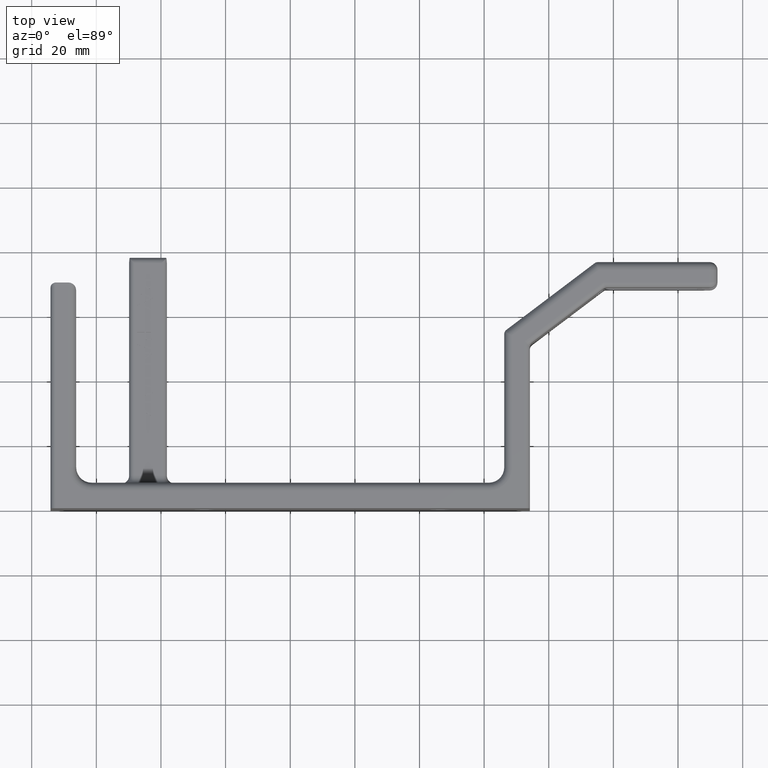
[diagram: clean part render]
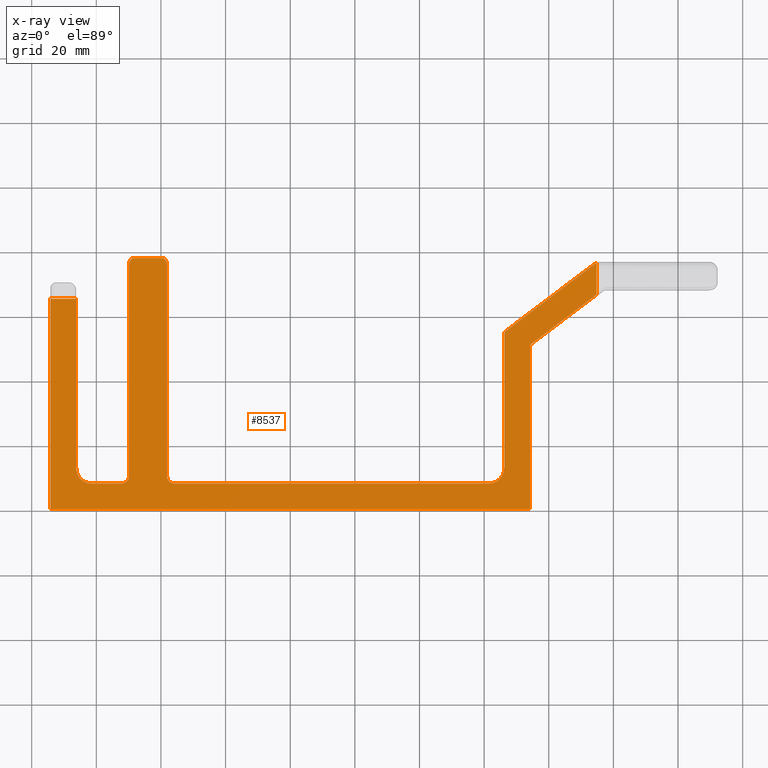
[diagram: x-ray — body ghosted, one internal face saturated and labeled with its STEP entity id]
A machine part, top view, then the same camera in x-ray: the body is ghosted and one INTERNAL B-rep face — a face not visible from any outside direction — is saturated and labeled: STEP entity #8537.
In plain terms, the highlighted planar face has unit normal (0, 0, 1).
Its self-contained STEP definition (entity closure, byte-faithful):
#152 = DIRECTION ( 'NONE',  ( -0.0000000000000000000, -0.0000000000000000000, -1.000000000000000000 ) ) ;
#170 = ORIENTED_EDGE ( 'NONE', *, *, #5994, .F. ) ;
#201 = CARTESIAN_POINT ( 'NONE',  ( 2.607499999999999900, 2.124452476496090400, 0.3125000000000000000 ) ) ;
#225 = CARTESIAN_POINT ( 'NONE',  ( -1.962499999999999900, 2.981412355957598200, 0.3124999999999999400 ) ) ;
#273 = CARTESIAN_POINT ( 'NONE',  ( -2.607499999999999900, 2.562499999999999100, 0.3125000000000000000 ) ) ;
#388 = DIRECTION ( 'NONE',  ( -0.0000000000000000000, -0.0000000000000000000, -1.000000000000000000 ) ) ;
#575 = ORIENTED_EDGE ( 'NONE', *, *, #2150, .T. ) ;
#603 = LINE ( 'NONE', #6489, #8622 ) ;
#667 = DIRECTION ( 'NONE',  ( 0.0000000000000000000, -1.000000000000000000, 0.0000000000000000000 ) ) ;
#716 = CARTESIAN_POINT ( 'NONE',  ( 2.419999999999999900, 0.3125000000000000000, 0.3125000000000000000 ) ) ;
#766 = EDGE_CURVE ( 'NONE', #3946, #1551, #603, .T. ) ;
#823 = B_SPLINE_CURVE_WITH_KNOTS ( 'NONE', 3,
 ( #9533, #225, #7222, #2594, #8040, #3362, #8795, #4160, #9572, #4933 ),
 .UNSPECIFIED., .F., .F.,
 ( 4, 2, 2, 2, 4 ),
 ( 0.002963746561226410600, 0.003574239485673417200, 0.004184732410120423800, 0.004795225334567429500, 0.005405718259014436100 ),
 .UNSPECIFIED. ) ;
#1010 = VERTEX_POINT ( 'NONE', #7539 ) ;
#1062 = VECTOR ( 'NONE', #3142, 39.37007874015748100 ) ;
#1102 = DIRECTION ( 'NONE',  ( 0.0000000000000000000, 1.000000000000000000, 0.0000000000000000000 ) ) ;
#1114 = CARTESIAN_POINT ( 'NONE',  ( -1.528592052849108600, 3.047391096858058200, 0.3124999999999999400 ) ) ;
#1311 = ORIENTED_EDGE ( 'NONE', *, *, #2790, .F. ) ;
#1324 = CARTESIAN_POINT ( 'NONE',  ( 2.919999999999999900, 1.072790596053081100E-015, 0.3125000000000000000 ) ) ;
#1360 = EDGE_CURVE ( 'NONE', #5415, #8321, #7266, .T. ) ;
#1487 = DIRECTION ( 'NONE',  ( -0.7978907525108177600, -0.6028020795067986500, 0.0000000000000000000 ) ) ;
#1503 = DIRECTION ( 'NONE',  ( -1.000000000000000000, 0.0000000000000000000, 0.0000000000000000000 ) ) ;
#1530 = VERTEX_POINT ( 'NONE', #7846 ) ;
#1551 = VERTEX_POINT ( 'NONE', #1674 ) ;
#1586 = VERTEX_POINT ( 'NONE', #273 ) ;
#1589 = AXIS2_PLACEMENT_3D ( 'NONE', #4834, #152, #5598 ) ;
#1602 = DIRECTION ( 'NONE',  ( -0.0000000000000000000, -0.0000000000000000000, -1.000000000000000000 ) ) ;
#1611 = EDGE_CURVE ( 'NONE', #5415, #5822, #6059, .T. ) ;
#1612 = VERTEX_POINT ( 'NONE', #5023 ) ;
#1661 = EDGE_CURVE ( 'NONE', #1010, #1586, #6045, .T. ) ;
#1674 = CARTESIAN_POINT ( 'NONE',  ( -2.419999999999999900, 0.3125000000000000000, 0.3125000000000000000 ) ) ;
#1759 = CIRCLE ( 'NONE', #1589, 0.06250000000000022200 ) ;
#1778 = CARTESIAN_POINT ( 'NONE',  ( 3.730981684165716400, 2.998124116171534000, 0.3125000000000004400 ) ) ;
#1867 = LINE ( 'NONE', #2280, #7607 ) ;
#1876 = CARTESIAN_POINT ( 'NONE',  ( -1.518432547207857700, 3.034902084280387800, 0.3125000000000001700 ) ) ;
#1907 = AXIS2_PLACEMENT_3D ( 'NONE', #7785, #3123, #8547 ) ;
#1971 = AXIS2_PLACEMENT_3D ( 'NONE', #6978, #2350, #7791 ) ;
#2066 = CIRCLE ( 'NONE', #1971, 0.09375000000000005600 ) ;
#2074 = EDGE_CURVE ( 'NONE', #9797, #1530, #1759, .T. ) ;
#2134 = VECTOR ( 'NONE', #2971, 39.37007874015748100 ) ;
#2150 = EDGE_CURVE ( 'NONE', #2290, #8321, #823, .T. ) ;
#2153 = VERTEX_POINT ( 'NONE', #6415 ) ;
#2198 = VECTOR ( 'NONE', #7746, 39.37007874015748100 ) ;
#2215 = EDGE_CURVE ( 'NONE', #1010, #4086, #6760, .T. ) ;
#2280 = CARTESIAN_POINT ( 'NONE',  ( -1.502500000000000200, 1.906000000000000100, 0.3125000000000000000 ) ) ;
#2290 = VERTEX_POINT ( 'NONE', #8334 ) ;
#2350 = DIRECTION ( 'NONE',  ( -0.0000000000000000000, -0.0000000000000000000, -1.000000000000000000 ) ) ;
#2356 = CARTESIAN_POINT ( 'NONE',  ( -1.962500000000000100, 1.906000000000000100, 0.3125000000000000000 ) ) ;
#2594 = CARTESIAN_POINT ( 'NONE',  ( -1.958891840209450600, 3.005175869339306700, 0.3125000000000000000 ) ) ;
#2672 = CARTESIAN_POINT ( 'NONE',  ( -2.607499999999999900, 0.3125000000000000000, 0.3125000000000000000 ) ) ;
#2689 = CARTESIAN_POINT ( 'NONE',  ( -1.508337310916559900, 3.012985917240317100, 0.3125000000000001700 ) ) ;
#2712 = EDGE_CURVE ( 'NONE', #2153, #5648, #4137, .T. ) ;
#2717 = DIRECTION ( 'NONE',  ( 1.000000000000000000, -0.0000000000000000000, -0.0000000000000000000 ) ) ;
#2771 = CARTESIAN_POINT ( 'NONE',  ( -1.962500000000000100, 0.4062500000000000000, 0.3125000000000000000 ) ) ;
#2780 = CARTESIAN_POINT ( 'NONE',  ( 2.919999999999999900, 1.968886880875977900, 0.3125000000000000000 ) ) ;
#2790 = EDGE_CURVE ( 'NONE', #6498, #3946, #2066, .T. ) ;
#2800 = DIRECTION ( 'NONE',  ( 1.000000000000000000, 0.0000000000000000000, -0.0000000000000000000 ) ) ;
#2911 = CARTESIAN_POINT ( 'NONE',  ( -1.408750000000000200, 0.4062500000000000600, 0.3125000000000000000 ) ) ;
#2927 = AXIS2_PLACEMENT_3D ( 'NONE', #2911, #8333, #3681 ) ;
#2931 = CARTESIAN_POINT ( 'NONE',  ( 2.944824870030825700, 2.018755052907903900, 0.3125000000000000000 ) ) ;
#2971 = DIRECTION ( 'NONE',  ( -0.0000000000000000000, 1.000000000000000000, -0.0000000000000000000 ) ) ;
#3031 = VECTOR ( 'NONE', #1102, 39.37007874015748100 ) ;
#3089 = CARTESIAN_POINT ( 'NONE',  ( -2.056250000000000400, 0.3125000000000000000, 0.3125000000000000000 ) ) ;
#3113 = ORIENTED_EDGE ( 'NONE', *, *, #3996, .T. ) ;
#3123 = DIRECTION ( 'NONE',  ( -0.0000000000000000000, -0.0000000000000000000, -1.000000000000000000 ) ) ;
#3142 = DIRECTION ( 'NONE',  ( 0.0000000000000000000, -1.000000000000000000, 0.0000000000000000000 ) ) ;
#3362 = CARTESIAN_POINT ( 'NONE',  ( -1.950524902925194100, 3.027784766373278200, 0.3125000000000000600 ) ) ;
#3404 = DIRECTION ( 'NONE',  ( -1.000000000000000000, 0.0000000000000000000, 0.0000000000000000000 ) ) ;
#3432 = EDGE_CURVE ( 'NONE', #7564, #3957, #5686, .T. ) ;
#3452 = CARTESIAN_POINT ( 'NONE',  ( -1.503197936337245900, 2.989389057323382600, 0.3125000000000000600 ) ) ;
#3460 = LINE ( 'NONE', #5387, #6022 ) ;
#3536 = CARTESIAN_POINT ( 'NONE',  ( 0.0000000000000000000, 0.0000000000000000000, 0.3125000000000000000 ) ) ;
#3618 = ORIENTED_EDGE ( 'NONE', *, *, #766, .F. ) ;
#3681 = DIRECTION ( 'NONE',  ( 1.000000000000000000, 0.0000000000000000000, 0.0000000000000000000 ) ) ;
#3847 = ORIENTED_EDGE ( 'NONE', *, *, #5980, .T. ) ;
#3856 = ORIENTED_EDGE ( 'NONE', *, *, #4917, .F. ) ;
#3934 = CARTESIAN_POINT ( 'NONE',  ( -2.919999999999999900, 0.0000000000000000000, 0.3125000000000000000 ) ) ;
#3946 = VERTEX_POINT ( 'NONE', #3089 ) ;
#3952 = AXIS2_PLACEMENT_3D ( 'NONE', #3536, #7434, #2800 ) ;
#3954 = EDGE_CURVE ( 'NONE', #4086, #5562, #6078, .T. ) ;
#3957 = VERTEX_POINT ( 'NONE', #10063 ) ;
#3996 = EDGE_CURVE ( 'NONE', #1612, #6861, #9952, .T. ) ;
#4031 = CARTESIAN_POINT ( 'NONE',  ( 2.982500000000000400, 1.968886880875977900, 0.3125000000000000000 ) ) ;
#4045 = CARTESIAN_POINT ( 'NONE',  ( -1.541342002929954500, 3.057282196187090900, 0.3125000000003296300 ) ) ;
#4057 = ORIENTED_EDGE ( 'NONE', *, *, #9264, .F. ) ;
#4086 = VERTEX_POINT ( 'NONE', #3934 ) ;
#4108 = ORIENTED_EDGE ( 'NONE', *, *, #2074, .T. ) ;
#4137 = CIRCLE ( 'NONE', #7108, 0.1875000000000001100 ) ;
#4160 = CARTESIAN_POINT ( 'NONE',  ( -1.936644349700193100, 3.047596351023443200, 0.3125000000000000600 ) ) ;
#4205 = LINE ( 'NONE', #7611, #2134 ) ;
#4213 = CARTESIAN_POINT ( 'NONE',  ( -1.534564147827298900, 3.052793992753650700, 0.3125000000000000000 ) ) ;
#4250 = CARTESIAN_POINT ( 'NONE',  ( -1.502500000000000200, 2.973406912408422400, 0.3125000000000000000 ) ) ;
#4390 = CARTESIAN_POINT ( 'NONE',  ( 2.919999999999999900, 1.072790596053081100E-015, 0.3125000000000000000 ) ) ;
#4481 = VECTOR ( 'NONE', #6556, 39.37007874015748100 ) ;
#4490 = VERTEX_POINT ( 'NONE', #9716 ) ;
#4734 = ORIENTED_EDGE ( 'NONE', *, *, #6063, .F. ) ;
#4803 = DIRECTION ( 'NONE',  ( 1.000000000000000000, -8.741913579725610700E-015, 0.0000000000000000000 ) ) ;
#4811 = ORIENTED_EDGE ( 'NONE', *, *, #7857, .F. ) ;
#4834 = CARTESIAN_POINT ( 'NONE',  ( 2.670000000000000400, 2.124452476496090400, 0.3125000000000000000 ) ) ;
#4917 = EDGE_CURVE ( 'NONE', #9797, #2153, #5650, .T. ) ;
#4933 = CARTESIAN_POINT ( 'NONE',  ( -1.923657997070093100, 3.057282196187112200, 0.3125000000003779200 ) ) ;
#5023 = CARTESIAN_POINT ( 'NONE',  ( 3.708504137505092700, 2.987368172031926100, 0.3125000000000000000 ) ) ;
#5049 = CIRCLE ( 'NONE', #9702, 0.1875000000000001100 ) ;
#5062 = CARTESIAN_POINT ( 'NONE',  ( 2.419999999999999900, 0.5000000000000000000, 0.3125000000000000000 ) ) ;
#5064 = CARTESIAN_POINT ( 'NONE',  ( -1.502500000000000200, 0.4062500000000000600, 0.3125000000000000000 ) ) ;
#5210 = LINE ( 'NONE', #2356, #1062 ) ;
#5252 = VERTEX_POINT ( 'NONE', #2780 ) ;
#5387 = CARTESIAN_POINT ( 'NONE',  ( -2.607499999999999900, 0.3125000000000000000, 0.3125000000000000000 ) ) ;
#5415 = VERTEX_POINT ( 'NONE', #7260 ) ;
#5450 = VECTOR ( 'NONE', #9813, 39.37007874015748100 ) ;
#5508 = LINE ( 'NONE', #6152, #6245 ) ;
#5558 = EDGE_CURVE ( 'NONE', #4490, #8815, #10017, .T. ) ;
#5562 = VERTEX_POINT ( 'NONE', #1324 ) ;
#5598 = DIRECTION ( 'NONE',  ( 1.000000000000000000, -8.741913579725610700E-015, 0.0000000000000000000 ) ) ;
#5632 = CIRCLE ( 'NONE', #9198, 0.06250000000000022200 ) ;
#5643 = CARTESIAN_POINT ( 'NONE',  ( -2.607499999999999900, 0.5000000000000000000, 0.3125000000000000000 ) ) ;
#5648 = VERTEX_POINT ( 'NONE', #716 ) ;
#5650 = LINE ( 'NONE', #6105, #9799 ) ;
#5686 = LINE ( 'NONE', #7633, #9829 ) ;
#5822 = VERTEX_POINT ( 'NONE', #6441 ) ;
#5837 = DIRECTION ( 'NONE',  ( 1.000000000000000000, 0.0000000000000000000, 0.0000000000000000000 ) ) ;
#5937 = EDGE_CURVE ( 'NONE', #3957, #6861, #4205, .T. ) ;
#5980 = EDGE_CURVE ( 'NONE', #5822, #8815, #1867, .T. ) ;
#5992 = ORIENTED_EDGE ( 'NONE', *, *, #6280, .F. ) ;
#5994 = EDGE_CURVE ( 'NONE', #5648, #4490, #3460, .T. ) ;
#6022 = VECTOR ( 'NONE', #1503, 39.37007874015748100 ) ;
#6045 = LINE ( 'NONE', #6574, #9925 ) ;
#6059 = B_SPLINE_CURVE_WITH_KNOTS ( 'NONE', 3,
 ( #4045, #8085, #4213, #1114, #6540, #1876, #7315, #2689, #8120, #3452, #8891, #4250 ),
 .UNSPECIFIED., .F., .F.,
 ( 4, 2, 2, 2, 2, 4 ),
 ( 0.007033394354989456300, 0.007339520219897870300, 0.007645646084806283400, 0.008257897814623124300, 0.008870149544439964400, 0.009482401274256804400 ),
 .UNSPECIFIED. ) ;
#6063 = EDGE_CURVE ( 'NONE', #1551, #6145, #5049, .T. ) ;
#6064 = DIRECTION ( 'NONE',  ( 0.7978907525108177600, 0.6028020795067986500, 0.0000000000000000000 ) ) ;
#6078 = LINE ( 'NONE', #9282, #2198 ) ;
#6105 = CARTESIAN_POINT ( 'NONE',  ( 2.607499999999999900, 0.3125000000000000000, 0.3125000000000000000 ) ) ;
#6145 = VERTEX_POINT ( 'NONE', #5643 ) ;
#6152 = CARTESIAN_POINT ( 'NONE',  ( 2.607499999999999900, 2.155565595620112500, 0.3125000000000000000 ) ) ;
#6236 = ORIENTED_EDGE ( 'NONE', *, *, #6751, .F. ) ;
#6245 = VECTOR ( 'NONE', #1487, 39.37007874015748900 ) ;
#6246 = CARTESIAN_POINT ( 'NONE',  ( -1.923657997070093100, 3.057282196187112200, 0.3125000000003779200 ) ) ;
#6267 = CARTESIAN_POINT ( 'NONE',  ( -2.419999999999999900, 0.5000000000000000000, 0.3125000000000000000 ) ) ;
#6280 = EDGE_CURVE ( 'NONE', #5252, #7564, #5632, .T. ) ;
#6291 = ORIENTED_EDGE ( 'NONE', *, *, #3432, .F. ) ;
#6415 = CARTESIAN_POINT ( 'NONE',  ( 2.607499999999999900, 0.5000000000000000000, 0.3125000000000000000 ) ) ;
#6441 = CARTESIAN_POINT ( 'NONE',  ( -1.502500000000000200, 2.973406912408422400, 0.3125000000000000000 ) ) ;
#6489 = CARTESIAN_POINT ( 'NONE',  ( -2.607499999999999900, 0.3125000000000000000, 0.3125000000000000000 ) ) ;
#6498 = VERTEX_POINT ( 'NONE', #2771 ) ;
#6540 = CARTESIAN_POINT ( 'NONE',  ( -1.525879795809495400, 3.044431424096047900, 0.3125000000000000000 ) ) ;
#6556 = DIRECTION ( 'NONE',  ( 0.0000000000000000000, -1.000000000000000000, 0.0000000000000000000 ) ) ;
#6572 = ORIENTED_EDGE ( 'NONE', *, *, #1611, .T. ) ;
#6574 = CARTESIAN_POINT ( 'NONE',  ( -2.919999999999999900, 2.562499999999999100, 0.3125000000000000000 ) ) ;
#6644 = PLANE ( 'NONE',  #3952 ) ;
#6751 = EDGE_CURVE ( 'NONE', #1612, #1530, #5508, .T. ) ;
#6760 = LINE ( 'NONE', #9638, #4481 ) ;
#6861 = VERTEX_POINT ( 'NONE', #1778 ) ;
#6978 = CARTESIAN_POINT ( 'NONE',  ( -2.056250000000000400, 0.4062500000000000000, 0.3125000000000000000 ) ) ;
#7041 = DIRECTION ( 'NONE',  ( 1.000000000000000000, 0.0000000000000000000, 0.0000000000000000000 ) ) ;
#7108 = AXIS2_PLACEMENT_3D ( 'NONE', #5062, #388, #5837 ) ;
#7222 = CARTESIAN_POINT ( 'NONE',  ( -1.961806544198617200, 2.989369210306227500, 0.3125000000000000000 ) ) ;
#7260 = CARTESIAN_POINT ( 'NONE',  ( -1.541342002929954500, 3.057282196187090900, 0.3125000000003296300 ) ) ;
#7262 = ORIENTED_EDGE ( 'NONE', *, *, #1360, .F. ) ;
#7266 = LINE ( 'NONE', #7645, #5450 ) ;
#7315 = CARTESIAN_POINT ( 'NONE',  ( -1.514475860420966500, 3.027787013095054800, 0.3125000000000000000 ) ) ;
#7434 = DIRECTION ( 'NONE',  ( 0.0000000000000000000, 0.0000000000000000000, 1.000000000000000000 ) ) ;
#7539 = CARTESIAN_POINT ( 'NONE',  ( -2.919999999999999900, 2.562499999999999100, 0.3125000000000000000 ) ) ;
#7564 = VERTEX_POINT ( 'NONE', #2931 ) ;
#7607 = VECTOR ( 'NONE', #8495, 39.37007874015748100 ) ;
#7611 = CARTESIAN_POINT ( 'NONE',  ( 3.730981684165715500, 2.540000000000000000, 0.3125000000000000000 ) ) ;
#7633 = CARTESIAN_POINT ( 'NONE',  ( 2.919999999999999900, 2.000000000000000000, 0.3125000000000000000 ) ) ;
#7645 = CARTESIAN_POINT ( 'NONE',  ( -1.502500000000000200, 3.057282196186947000, 0.3125000000000000000 ) ) ;
#7746 = DIRECTION ( 'NONE',  ( 1.000000000000000000, 1.836970198721029400E-016, 0.0000000000000000000 ) ) ;
#7758 = EDGE_LOOP ( 'NONE', ( #1311, #10038, #575, #7262, #6572, #3847, #8496, #170, #9630, #3856, #4108, #6236, #3113, #9733, #6291, #5992, #4057, #10013, #9058, #9005, #4811, #4734, #3618 ) ) ;
#7785 = CARTESIAN_POINT ( 'NONE',  ( 3.746179267474267300, 2.937500000000000000, 0.3125000000000000000 ) ) ;
#7791 = DIRECTION ( 'NONE',  ( 1.000000000000000000, 0.0000000000000000000, 0.0000000000000000000 ) ) ;
#7846 = CARTESIAN_POINT ( 'NONE',  ( 2.632324870030825700, 2.174320648528016400, 0.3125000000000000000 ) ) ;
#7857 = EDGE_CURVE ( 'NONE', #6145, #1586, #9210, .T. ) ;
#8040 = CARTESIAN_POINT ( 'NONE',  ( -1.956660389409809400, 3.012991868209483800, 0.3125000000000000000 ) ) ;
#8085 = CARTESIAN_POINT ( 'NONE',  ( -1.537855336136653600, 3.055249441412144900, 0.3125000000000000000 ) ) ;
#8120 = CARTESIAN_POINT ( 'NONE',  ( -1.506099109780250100, 3.005131234714937300, 0.3125000000000000600 ) ) ;
#8273 = EDGE_CURVE ( 'NONE', #2290, #6498, #5210, .T. ) ;
#8321 = VERTEX_POINT ( 'NONE', #6246 ) ;
#8333 = DIRECTION ( 'NONE',  ( -0.0000000000000000000, -0.0000000000000000000, -1.000000000000000000 ) ) ;
#8334 = CARTESIAN_POINT ( 'NONE',  ( -1.962500000000000100, 2.973406912408422400, 0.3125000000000000000 ) ) ;
#8495 = DIRECTION ( 'NONE',  ( 0.0000000000000000000, -1.000000000000000000, 0.0000000000000000000 ) ) ;
#8496 = ORIENTED_EDGE ( 'NONE', *, *, #5558, .F. ) ;
#8537 = ADVANCED_FACE ( 'NONE', ( #9680 ), #6644, .F. ) ;
#8547 = DIRECTION ( 'NONE',  ( 1.000000000000000000, 0.0000000000000000000, 0.0000000000000000000 ) ) ;
#8622 = VECTOR ( 'NONE', #3404, 39.37007874015748100 ) ;
#8795 = CARTESIAN_POINT ( 'NONE',  ( -1.946538310158581100, 3.034942490902762900, 0.3125000000000000000 ) ) ;
#8815 = VERTEX_POINT ( 'NONE', #5064 ) ;
#8891 = CARTESIAN_POINT ( 'NONE',  ( -1.502499999999999300, 2.981435993043485100, 0.3125000000000000000 ) ) ;
#9005 = ORIENTED_EDGE ( 'NONE', *, *, #1661, .T. ) ;
#9013 = DIRECTION ( 'NONE',  ( 0.0000000000000000000, 1.000000000000000000, 0.0000000000000000000 ) ) ;
#9058 = ORIENTED_EDGE ( 'NONE', *, *, #2215, .F. ) ;
#9186 = LINE ( 'NONE', #4390, #9666 ) ;
#9198 = AXIS2_PLACEMENT_3D ( 'NONE', #4031, #9434, #4803 ) ;
#9210 = LINE ( 'NONE', #2672, #3031 ) ;
#9264 = EDGE_CURVE ( 'NONE', #5562, #5252, #9186, .T. ) ;
#9282 = CARTESIAN_POINT ( 'NONE',  ( -2.919999999999999900, 0.0000000000000000000, 0.3125000000000000000 ) ) ;
#9434 = DIRECTION ( 'NONE',  ( -0.0000000000000000000, -0.0000000000000000000, -1.000000000000000000 ) ) ;
#9533 = CARTESIAN_POINT ( 'NONE',  ( -1.962500000000000100, 2.973406912408422400, 0.3125000000000000000 ) ) ;
#9572 = CARTESIAN_POINT ( 'NONE',  ( -1.930606200253887100, 3.053231337864405600, 0.3125000000000000000 ) ) ;
#9630 = ORIENTED_EDGE ( 'NONE', *, *, #2712, .F. ) ;
#9638 = CARTESIAN_POINT ( 'NONE',  ( -2.919999999999999900, 0.0000000000000000000, 0.3125000000000000000 ) ) ;
#9666 = VECTOR ( 'NONE', #9013, 39.37007874015748100 ) ;
#9680 = FACE_OUTER_BOUND ( 'NONE', #7758, .T. ) ;
#9702 = AXIS2_PLACEMENT_3D ( 'NONE', #6267, #1602, #7041 ) ;
#9716 = CARTESIAN_POINT ( 'NONE',  ( -1.408750000000000200, 0.3125000000000000000, 0.3125000000000000000 ) ) ;
#9733 = ORIENTED_EDGE ( 'NONE', *, *, #5937, .F. ) ;
#9797 = VERTEX_POINT ( 'NONE', #201 ) ;
#9799 = VECTOR ( 'NONE', #667, 39.37007874015748100 ) ;
#9813 = DIRECTION ( 'NONE',  ( -1.000000000000000000, -0.0000000000000000000, -0.0000000000000000000 ) ) ;
#9829 = VECTOR ( 'NONE', #6064, 39.37007874015748900 ) ;
#9925 = VECTOR ( 'NONE', #2717, 39.37007874015748100 ) ;
#9952 = CIRCLE ( 'NONE', #1907, 0.06250000000000022200 ) ;
#10013 = ORIENTED_EDGE ( 'NONE', *, *, #3954, .F. ) ;
#10017 = CIRCLE ( 'NONE', #2927, 0.09375000000000005600 ) ;
#10038 = ORIENTED_EDGE ( 'NONE', *, *, #8273, .F. ) ;
#10063 = CARTESIAN_POINT ( 'NONE',  ( 3.730981684165715500, 2.612692206443878500, 0.3125000000000000000 ) ) ;